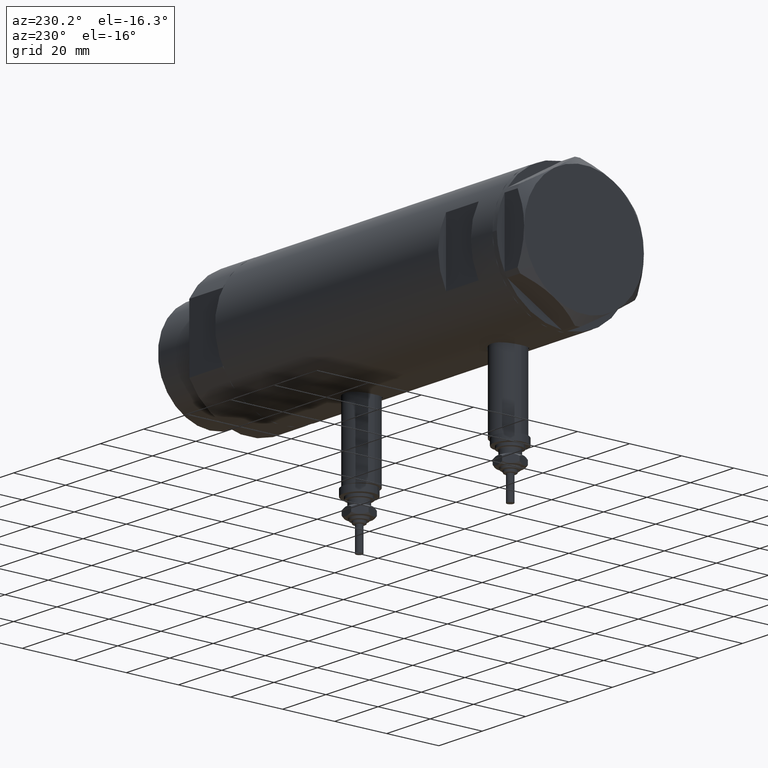
[diagram: clean part render]
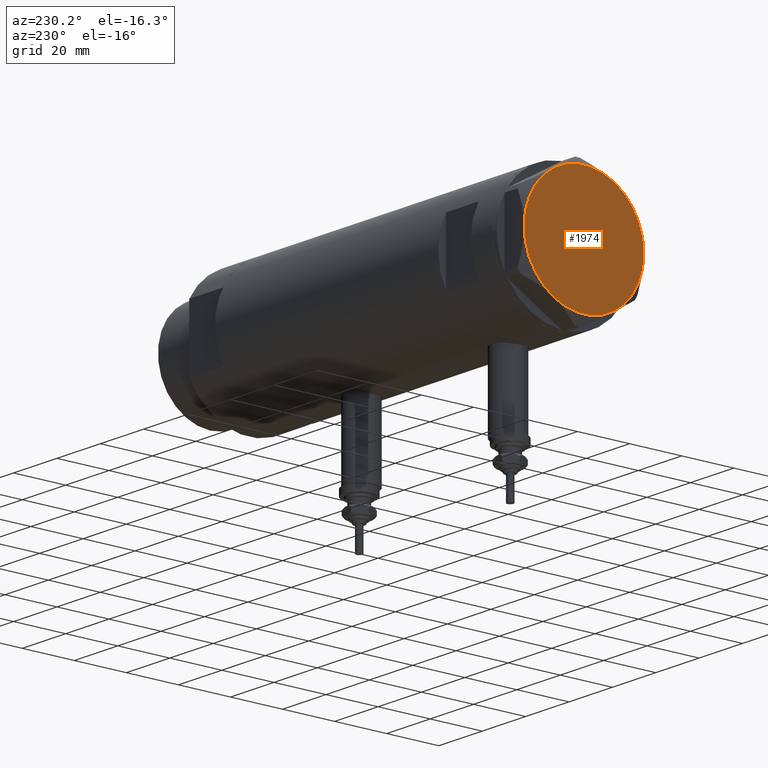
[diagram: same view with one face highlighted and labeled with its STEP entity id]
A machine part, auxiliary view. The second image highlights one B-rep face of the part: STEP entity #1974.
In plain terms, the highlighted planar face has unit normal (-1, -0, 0).
Its self-contained STEP definition (entity closure, byte-faithful):
#71 = VERTEX_POINT ( 'NONE', #1645 ) ;
#158 = ORIENTED_EDGE ( 'NONE', *, *, #2466, .T. ) ;
#284 = DIRECTION ( 'NONE',  ( 0.000000000000000000, 0.000000000000000000, 1.000000000000000000 ) ) ;
#305 = DIRECTION ( 'NONE',  ( 0.000000000000000000, 0.000000000000000000, 1.000000000000000000 ) ) ;
#330 = CIRCLE ( 'NONE', #1462, 23.00000000000004619 ) ;
#421 = CARTESIAN_POINT ( 'NONE',  ( 22.99999999999995026, 2.373657066004705010E-13, 9.000000000000000000 ) ) ;
#440 = CARTESIAN_POINT ( 'NONE',  ( 0.000000000000000000, 0.000000000000000000, 9.000000000000000000 ) ) ;
#488 = DIRECTION ( 'NONE',  ( 1.000000000000000000, 0.000000000000000000, 0.000000000000000000 ) ) ;
#511 = DIRECTION ( 'NONE',  ( 1.000000000000000000, 0.000000000000000000, 0.000000000000000000 ) ) ;
#774 = CARTESIAN_POINT ( 'NONE',  ( 0.000000000000000000, 0.000000000000000000, 9.000000000000000000 ) ) ;
#806 = CARTESIAN_POINT ( 'NONE',  ( -11.49999999999990585, -19.91858428704219364, 9.000000000000000000 ) ) ;
#872 = DIRECTION ( 'NONE',  ( 1.000000000000000000, 0.000000000000000000, -0.000000000000000000 ) ) ;
#890 = CARTESIAN_POINT ( 'NONE',  ( -11.50000000000004441, 19.91858428704211548, 9.000000000000000000 ) ) ;
#1143 = AXIS2_PLACEMENT_3D ( 'NONE', #5090, #4581, #2129 ) ;
#1462 = AXIS2_PLACEMENT_3D ( 'NONE', #5854, #4417, #488 ) ;
#1645 = CARTESIAN_POINT ( 'NONE',  ( 11.49999999999990408, 19.91858428704219364, 9.000000000000000000 ) ) ;
#1794 = DIRECTION ( 'NONE',  ( 1.000000000000000000, 0.000000000000000000, 0.000000000000000000 ) ) ;
#1880 = ORIENTED_EDGE ( 'NONE', *, *, #4532, .T. ) ;
#1915 = VERTEX_POINT ( 'NONE', #806 ) ;
#1974 = ADVANCED_FACE ( 'NONE', ( #2665 ), #4599, .T. ) ;
#2122 = CARTESIAN_POINT ( 'NONE',  ( 11.50000000000018296, -19.91858428704203732, 9.000000000000000000 ) ) ;
#2129 = DIRECTION ( 'NONE',  ( 1.000000000000000000, 0.000000000000000000, 0.000000000000000000 ) ) ;
#2265 = DIRECTION ( 'NONE',  ( 1.000000000000000000, 0.000000000000000000, 0.000000000000000000 ) ) ;
#2454 = EDGE_CURVE ( 'NONE', #2806, #71, #3646, .T. ) ;
#2466 = EDGE_CURVE ( 'NONE', #3766, #3013, #4144, .T. ) ;
#2665 = FACE_OUTER_BOUND ( 'NONE', #5705, .T. ) ;
#2761 = CARTESIAN_POINT ( 'NONE',  ( 0.000000000000000000, 0.000000000000000000, 9.000000000000000000 ) ) ;
#2806 = VERTEX_POINT ( 'NONE', #421 ) ;
#2851 = CARTESIAN_POINT ( 'NONE',  ( 0.000000000000000000, 0.000000000000000000, 9.000000000000000000 ) ) ;
#2951 = DIRECTION ( 'NONE',  ( 0.000000000000000000, 0.000000000000000000, 1.000000000000000000 ) ) ;
#3013 = VERTEX_POINT ( 'NONE', #5499 ) ;
#3016 = VERTEX_POINT ( 'NONE', #2122 ) ;
#3103 = ORIENTED_EDGE ( 'NONE', *, *, #6316, .T. ) ;
#3434 = CARTESIAN_POINT ( 'NONE',  ( 0.000000000000000000, 0.000000000000000000, 9.000000000000000000 ) ) ;
#3451 = AXIS2_PLACEMENT_3D ( 'NONE', #2851, #4789, #4819 ) ;
#3646 = CIRCLE ( 'NONE', #3451, 23.00000000000004619 ) ;
#3708 = CIRCLE ( 'NONE', #5125, 23.00000000000004619 ) ;
#3766 = VERTEX_POINT ( 'NONE', #890 ) ;
#3782 = DIRECTION ( 'NONE',  ( 0.000000000000000000, 0.000000000000000000, 1.000000000000000000 ) ) ;
#3901 = CIRCLE ( 'NONE', #1143, 23.00000000000004619 ) ;
#3940 = ORIENTED_EDGE ( 'NONE', *, *, #2454, .T. ) ;
#3988 = ORIENTED_EDGE ( 'NONE', *, *, #5511, .T. ) ;
#4144 = CIRCLE ( 'NONE', #5780, 23.00000000000004619 ) ;
#4417 = DIRECTION ( 'NONE',  ( 0.000000000000000000, 0.000000000000000000, 1.000000000000000000 ) ) ;
#4532 = EDGE_CURVE ( 'NONE', #3016, #2806, #5232, .T. ) ;
#4581 = DIRECTION ( 'NONE',  ( 0.000000000000000000, 0.000000000000000000, 1.000000000000000000 ) ) ;
#4599 = PLANE ( 'NONE',  #6174 ) ;
#4789 = DIRECTION ( 'NONE',  ( 0.000000000000000000, 0.000000000000000000, 1.000000000000000000 ) ) ;
#4819 = DIRECTION ( 'NONE',  ( 1.000000000000000000, 0.000000000000000000, 0.000000000000000000 ) ) ;
#5090 = CARTESIAN_POINT ( 'NONE',  ( 0.000000000000000000, 0.000000000000000000, 9.000000000000000000 ) ) ;
#5125 = AXIS2_PLACEMENT_3D ( 'NONE', #2761, #3782, #1794 ) ;
#5232 = CIRCLE ( 'NONE', #6046, 23.00000000000004619 ) ;
#5499 = CARTESIAN_POINT ( 'NONE',  ( -23.00000000000004619, -8.112498833180673323E-14, 9.000000000000000000 ) ) ;
#5511 = EDGE_CURVE ( 'NONE', #1915, #3016, #3901, .T. ) ;
#5705 = EDGE_LOOP ( 'NONE', ( #1880, #3940, #3103, #158, #5782, #3988 ) ) ;
#5780 = AXIS2_PLACEMENT_3D ( 'NONE', #440, #305, #2265 ) ;
#5782 = ORIENTED_EDGE ( 'NONE', *, *, #6088, .T. ) ;
#5854 = CARTESIAN_POINT ( 'NONE',  ( 0.000000000000000000, 0.000000000000000000, 9.000000000000000000 ) ) ;
#6046 = AXIS2_PLACEMENT_3D ( 'NONE', #3434, #2951, #511 ) ;
#6088 = EDGE_CURVE ( 'NONE', #3013, #1915, #3708, .T. ) ;
#6174 = AXIS2_PLACEMENT_3D ( 'NONE', #774, #284, #872 ) ;
#6316 = EDGE_CURVE ( 'NONE', #71, #3766, #330, .T. ) ;